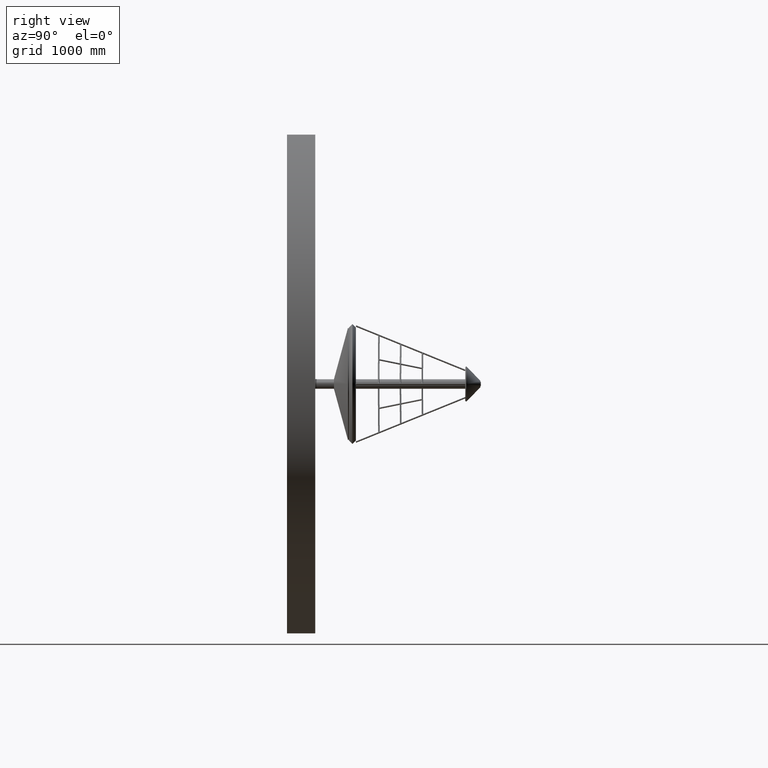
[diagram: clean part render]
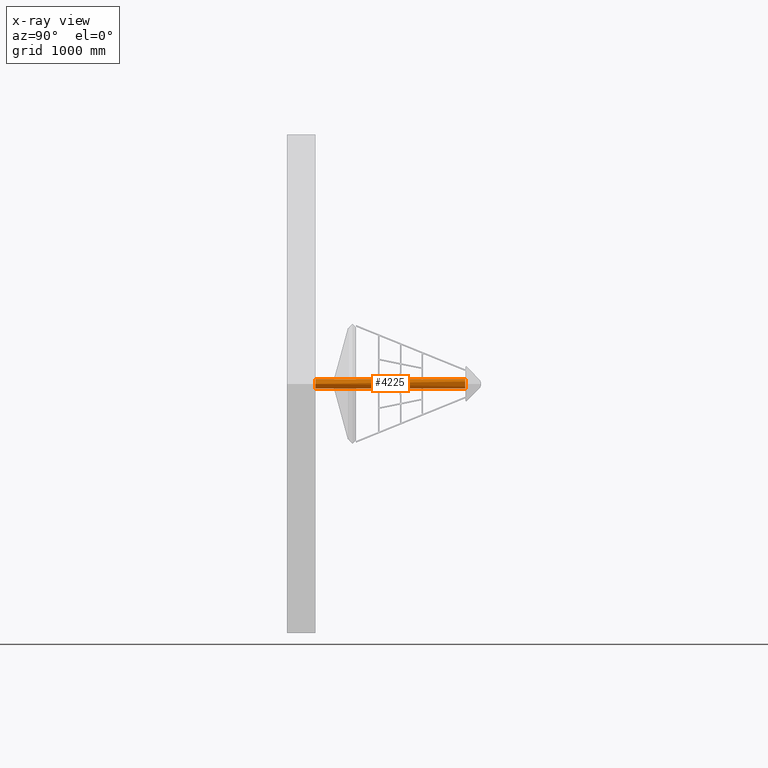
[diagram: x-ray — body ghosted, one internal face saturated and labeled with its STEP entity id]
A machine part, right view, then the same camera in x-ray: the body is ghosted and one INTERNAL B-rep face — a face not visible from any outside direction — is saturated and labeled: STEP entity #4225.
In plain terms, the highlighted cylindrical surface (bore or boss wall) has radius 50.8 mm, axis along (-0, -1, -0).
Its self-contained STEP definition (entity closure, byte-faithful):
#65 = ORIENTED_EDGE ( 'NONE', *, *, #3935, .F. ) ;
#112 = AXIS2_PLACEMENT_3D ( 'NONE', #1230, #4264, #4787 ) ;
#114 = DIRECTION ( 'NONE',  ( 0.0000000000000000000, 1.000000000000000000, 0.0000000000000000000 ) ) ;
#404 = CARTESIAN_POINT ( 'NONE',  ( 0.0000000000000000000, 6.000000000000227400, 0.0000000000000000000 ) ) ;
#566 = CARTESIAN_POINT ( 'NONE',  ( 0.0000000000000000000, 1600.000000000000000, 50.79999999999999700 ) ) ;
#628 = CARTESIAN_POINT ( 'NONE',  ( 0.0000000000000000000, 1600.000000000000000, 0.0000000000000000000 ) ) ;
#916 = DIRECTION ( 'NONE',  ( 0.0000000000000000000, 0.0000000000000000000, -1.000000000000000000 ) ) ;
#1028 = EDGE_LOOP ( 'NONE', ( #65 ) ) ;
#1198 = FACE_OUTER_BOUND ( 'NONE', #2510, .T. ) ;
#1230 = CARTESIAN_POINT ( 'NONE',  ( 0.0000000000000000000, 1600.000000000000000, 0.0000000000000000000 ) ) ;
#1617 = DIRECTION ( 'NONE',  ( 0.0000000000000000000, 0.0000000000000000000, 1.000000000000000000 ) ) ;
#2158 = ORIENTED_EDGE ( 'NONE', *, *, #5071, .F. ) ;
#2252 = AXIS2_PLACEMENT_3D ( 'NONE', #628, #114, #1617 ) ;
#2510 = EDGE_LOOP ( 'NONE', ( #2158 ) ) ;
#3069 = AXIS2_PLACEMENT_3D ( 'NONE', #404, #3956, #916 ) ;
#3581 = CARTESIAN_POINT ( 'NONE',  ( 0.0000000000000000000, 6.000000000000227400, -50.79999999999999700 ) ) ;
#3886 = FACE_OUTER_BOUND ( 'NONE', #1028, .T. ) ;
#3935 = EDGE_CURVE ( 'NONE', #6081, #6081, #4527, .T. ) ;
#3956 = DIRECTION ( 'NONE',  ( 0.0000000000000000000, -1.000000000000000000, 0.0000000000000000000 ) ) ;
#4225 = ADVANCED_FACE ( 'NONE', ( #3886, #1198 ), #5088, .T. ) ;
#4264 = DIRECTION ( 'NONE',  ( -0.0000000000000000000, -1.000000000000000000, -0.0000000000000000000 ) ) ;
#4416 = VERTEX_POINT ( 'NONE', #3581 ) ;
#4527 = CIRCLE ( 'NONE', #2252, 50.79999999999999700 ) ;
#4697 = CIRCLE ( 'NONE', #3069, 50.79999999999999700 ) ;
#4787 = DIRECTION ( 'NONE',  ( 0.0000000000000000000, 0.0000000000000000000, -1.000000000000000000 ) ) ;
#5071 = EDGE_CURVE ( 'NONE', #4416, #4416, #4697, .T. ) ;
#5088 = CYLINDRICAL_SURFACE ( 'NONE', #112, 50.79999999999999700 ) ;
#6081 = VERTEX_POINT ( 'NONE', #566 ) ;